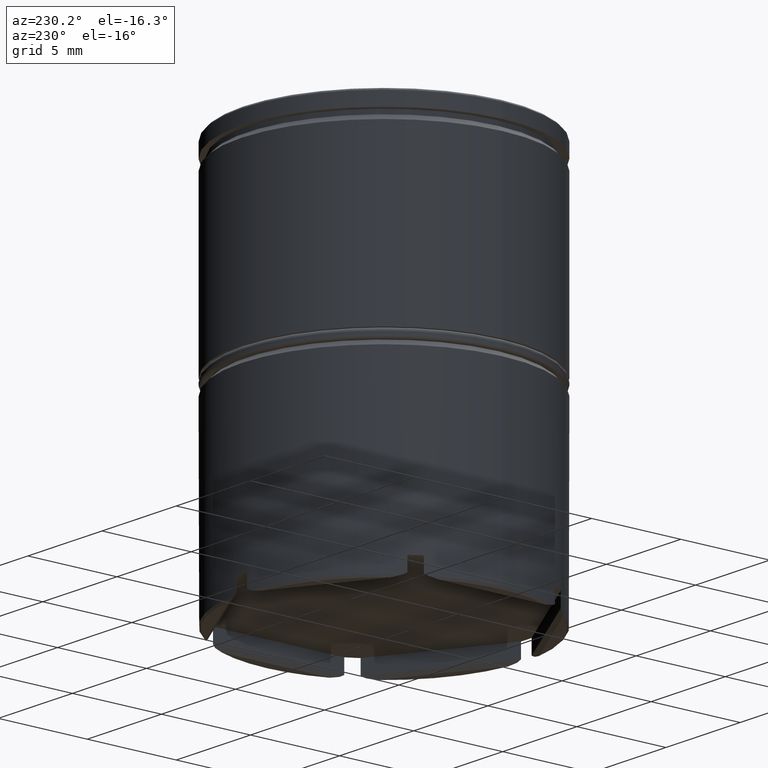
[diagram: clean part render]
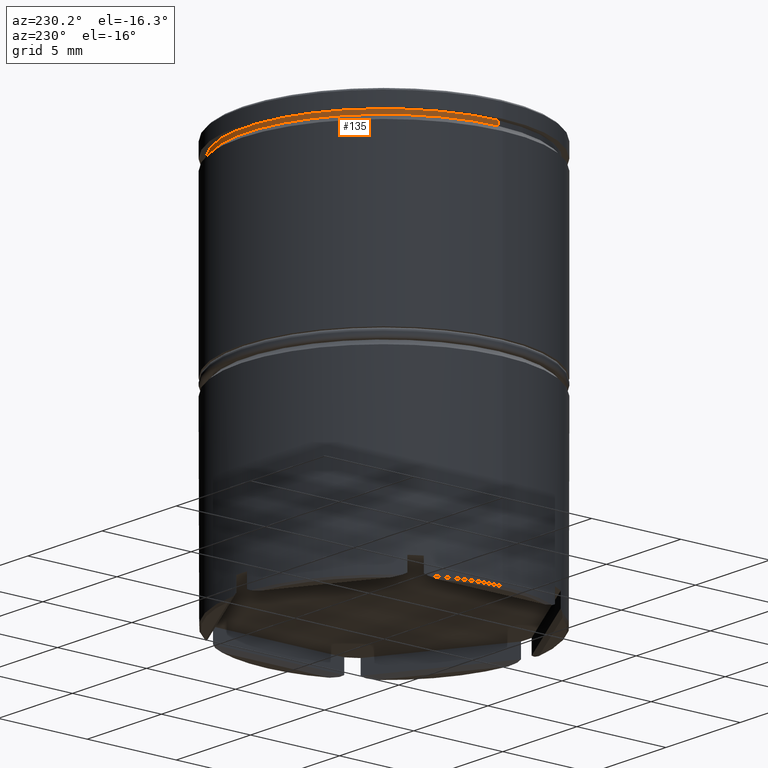
[diagram: same view with one face highlighted and labeled with its STEP entity id]
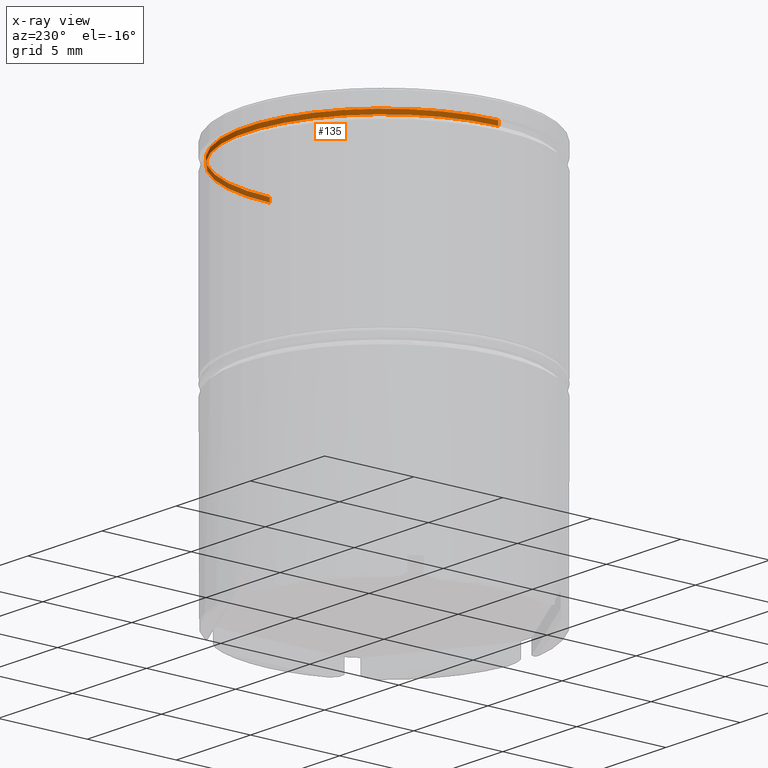
[diagram: x-ray of the same camera — body ghosted, the highlighted face saturated]
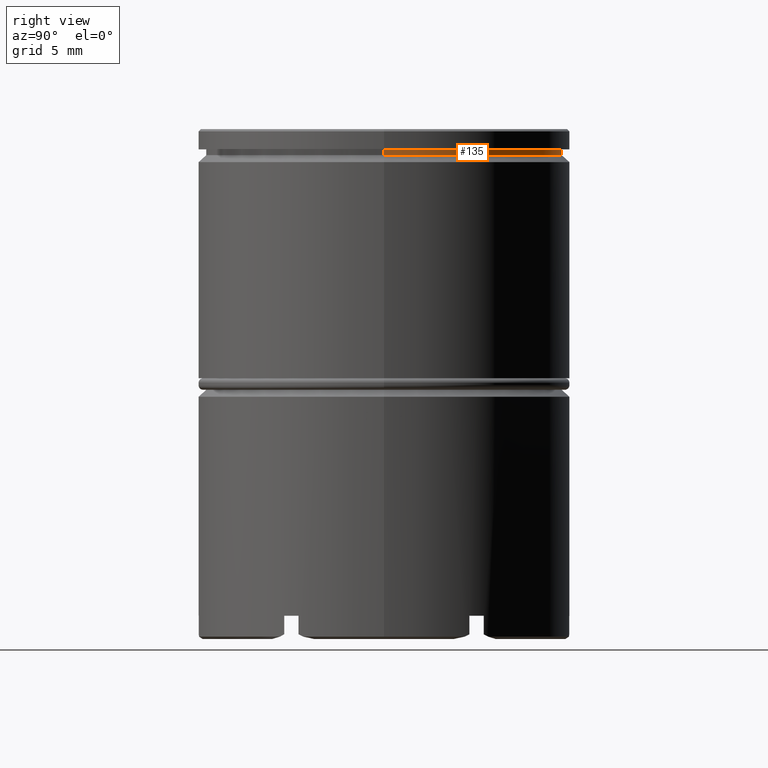
[diagram: same view with one face highlighted and labeled with its STEP entity id]
A machine part, auxiliary view. The second image highlights one B-rep face of the part: STEP entity #135.
The next image is the same camera in x-ray: the body ghosted, the highlighted face saturated — about 18% of this face is hidden behind the body in this view.
A second angle (right view) of the same face is appended — the face is thin or edge-on in the first view.
In plain terms, the highlighted cylindrical surface (partial cylindrical patch) has radius 7.7 mm, axis along (-0, -0, 1).
Its self-contained STEP definition (entity closure, byte-faithful):
#11 = LINE ( 'NONE', #252, #25 ) ;
#14 = CARTESIAN_POINT ( 'NONE',  ( -7.700000000000000178, 9.429780353434619030E-16, 0.000000000000000000 ) ) ;
#25 = VECTOR ( 'NONE', #1500, 1000.000000000000000 ) ;
#135 = ADVANCED_FACE ( 'NONE', ( #1358 ), #592, .T. ) ;
#137 = AXIS2_PLACEMENT_3D ( 'NONE', #240, #1512, #249 ) ;
#183 = EDGE_LOOP ( 'NONE', ( #675, #1031, #1452, #1279 ) ) ;
#240 = CARTESIAN_POINT ( 'NONE',  ( 0.000000000000000000, 0.000000000000000000, -0.8749999999999998890 ) ) ;
#243 = VECTOR ( 'NONE', #673, 1000.000000000000000 ) ;
#249 = DIRECTION ( 'NONE',  ( 1.000000000000000000, 0.000000000000000000, 0.000000000000000000 ) ) ;
#252 = CARTESIAN_POINT ( 'NONE',  ( 7.700000000000000178, 0.000000000000000000, 0.000000000000000000 ) ) ;
#370 = CARTESIAN_POINT ( 'NONE',  ( 0.000000000000000000, 0.000000000000000000, -1.125000000000000222 ) ) ;
#382 = DIRECTION ( 'NONE',  ( 1.000000000000000000, 0.000000000000000000, 0.000000000000000000 ) ) ;
#410 = VERTEX_POINT ( 'NONE', #893 ) ;
#494 = DIRECTION ( 'NONE',  ( 1.000000000000000000, 0.000000000000000000, 0.000000000000000000 ) ) ;
#502 = DIRECTION ( 'NONE',  ( -0.000000000000000000, -0.000000000000000000, 1.000000000000000000 ) ) ;
#551 = EDGE_CURVE ( 'NONE', #410, #1326, #11, .T. ) ;
#592 = CYLINDRICAL_SURFACE ( 'NONE', #656, 7.700000000000000178 ) ;
#600 = CARTESIAN_POINT ( 'NONE',  ( 0.000000000000000000, 0.000000000000000000, 0.000000000000000000 ) ) ;
#656 = AXIS2_PLACEMENT_3D ( 'NONE', #600, #502, #494 ) ;
#664 = LINE ( 'NONE', #14, #243 ) ;
#673 = DIRECTION ( 'NONE',  ( -0.000000000000000000, -0.000000000000000000, 1.000000000000000000 ) ) ;
#675 = ORIENTED_EDGE ( 'NONE', *, *, #1385, .T. ) ;
#698 = VERTEX_POINT ( 'NONE', #1540 ) ;
#893 = CARTESIAN_POINT ( 'NONE',  ( 7.700000000000000178, 0.000000000000000000, -1.125000000000000222 ) ) ;
#955 = CIRCLE ( 'NONE', #137, 7.700000000000000178 ) ;
#1031 = ORIENTED_EDGE ( 'NONE', *, *, #1536, .T. ) ;
#1053 = CIRCLE ( 'NONE', #1504, 7.700000000000000178 ) ;
#1115 = CARTESIAN_POINT ( 'NONE',  ( -7.700000000000000178, 9.429780353434619030E-16, -0.8749999999999998890 ) ) ;
#1257 = CARTESIAN_POINT ( 'NONE',  ( 7.700000000000000178, 0.000000000000000000, -0.8749999999999998890 ) ) ;
#1279 = ORIENTED_EDGE ( 'NONE', *, *, #551, .F. ) ;
#1310 = EDGE_CURVE ( 'NONE', #1326, #1356, #955, .T. ) ;
#1326 = VERTEX_POINT ( 'NONE', #1257 ) ;
#1356 = VERTEX_POINT ( 'NONE', #1115 ) ;
#1358 = FACE_OUTER_BOUND ( 'NONE', #183, .T. ) ;
#1385 = EDGE_CURVE ( 'NONE', #410, #698, #1053, .T. ) ;
#1452 = ORIENTED_EDGE ( 'NONE', *, *, #1310, .F. ) ;
#1497 = DIRECTION ( 'NONE',  ( -0.000000000000000000, -0.000000000000000000, 1.000000000000000000 ) ) ;
#1500 = DIRECTION ( 'NONE',  ( -0.000000000000000000, -0.000000000000000000, 1.000000000000000000 ) ) ;
#1504 = AXIS2_PLACEMENT_3D ( 'NONE', #370, #1497, #382 ) ;
#1512 = DIRECTION ( 'NONE',  ( -0.000000000000000000, -0.000000000000000000, 1.000000000000000000 ) ) ;
#1536 = EDGE_CURVE ( 'NONE', #698, #1356, #664, .T. ) ;
#1540 = CARTESIAN_POINT ( 'NONE',  ( -7.700000000000000178, 9.429780353434619030E-16, -1.125000000000000222 ) ) ;